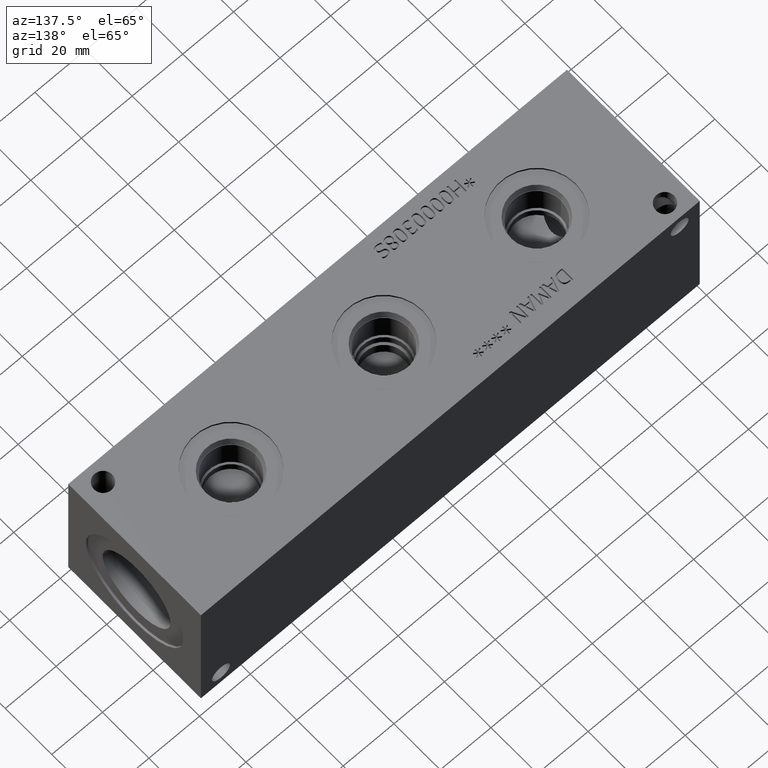
[diagram: clean part render]
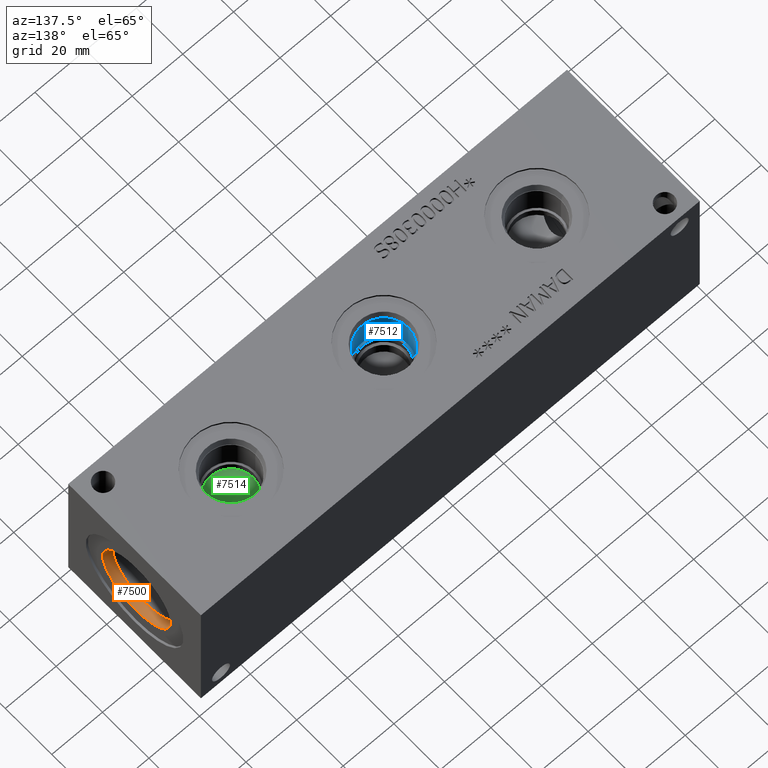
[diagram: same view with three faces highlighted in distinct colors, each labeled with its STEP entity id]
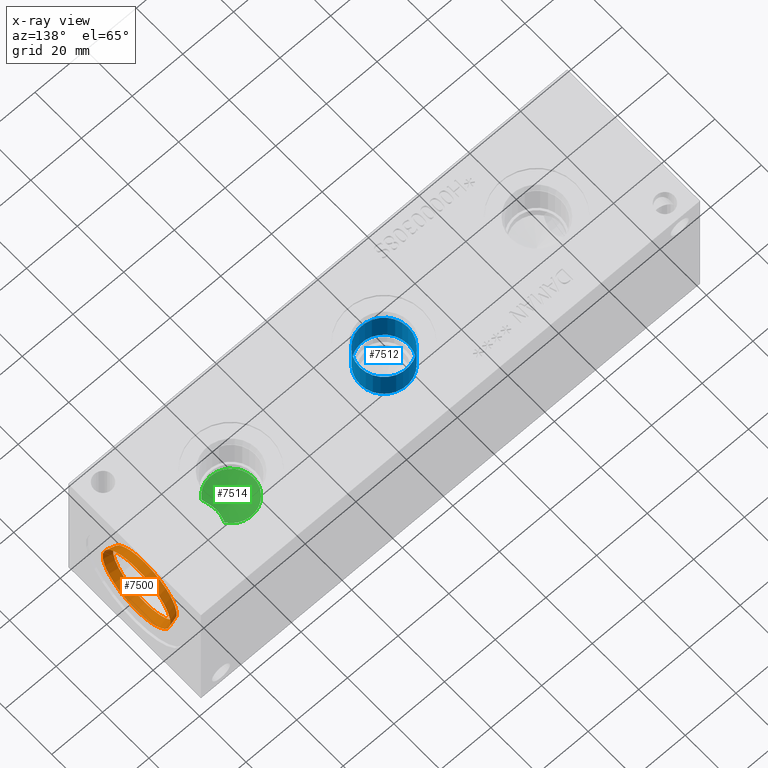
[diagram: x-ray of the same camera — body ghosted, the three highlighted faces saturated]
A machine part, auxiliary view with three faces highlighted in distinct colors.
The next image is the same camera in x-ray (body ghosted, the three faces saturated) — at least one of them is partly hidden behind the body in this view.
Their STEP definitions:

[orange] entity #7500 — the highlighted conical surface has half-angle 15 deg.
#20=CONICAL_SURFACE('',#7840,14.15415,0.26179938953232);
#126=CIRCLE('',#7838,14.5923);
#127=CIRCLE('',#7839,14.5923);
#128=CIRCLE('',#7841,13.716);
#129=CIRCLE('',#7842,13.716);
#782=FACE_OUTER_BOUND('',#1203,.T.);
#1203=EDGE_LOOP('',(#6527,#6528,#6529,#6530,#6531,#6532));
#1905=LINE('',#12963,#2589);
#2589=VECTOR('',#9153,14.15415);
#3526=VERTEX_POINT('',#12957);
#3527=VERTEX_POINT('',#12958);
#3528=VERTEX_POINT('',#12962);
#3529=VERTEX_POINT('',#12964);
#4547=EDGE_CURVE('',#3526,#3527,#126,.T.);
#4548=EDGE_CURVE('',#3527,#3526,#127,.T.);
#4549=EDGE_CURVE('',#3527,#3528,#1905,.T.);
#4550=EDGE_CURVE('',#3528,#3529,#128,.T.);
#4551=EDGE_CURVE('',#3529,#3528,#129,.T.);
#6527=ORIENTED_EDGE('',*,*,#4547,.F.);
#6528=ORIENTED_EDGE('',*,*,#4548,.F.);
#6529=ORIENTED_EDGE('',*,*,#4549,.T.);
#6530=ORIENTED_EDGE('',*,*,#4550,.T.);
#6531=ORIENTED_EDGE('',*,*,#4551,.T.);
#6532=ORIENTED_EDGE('',*,*,#4549,.F.);
#7500=ADVANCED_FACE('',(#782),#20,.F.);
#7838=AXIS2_PLACEMENT_3D('',#12959,#9147,#9148);
#7839=AXIS2_PLACEMENT_3D('',#12960,#9149,#9150);
#7840=AXIS2_PLACEMENT_3D('',#12961,#9151,#9152);
#7841=AXIS2_PLACEMENT_3D('',#12965,#9154,#9155);
#7842=AXIS2_PLACEMENT_3D('',#12966,#9156,#9157);
#9147=DIRECTION('center_axis',(-1.,0.,0.));
#9148=DIRECTION('ref_axis',(0.,0.,1.));
#9149=DIRECTION('center_axis',(-1.,0.,0.));
#9150=DIRECTION('ref_axis',(0.,0.,1.));
#9151=DIRECTION('center_axis',(1.,0.,0.));
#9152=DIRECTION('ref_axis',(0.,0.,-1.));
#9153=DIRECTION('',(-0.965925825840491,-3.16961917193375E-17,-0.258819046776635));
#9154=DIRECTION('center_axis',(-1.,0.,0.));
#9155=DIRECTION('ref_axis',(0.,0.,1.));
#9156=DIRECTION('center_axis',(-1.,0.,0.));
#9157=DIRECTION('ref_axis',(0.,0.,1.));
#12957=CARTESIAN_POINT('',(196.0626,28.575,13.9827));
#12958=CARTESIAN_POINT('',(196.0626,28.575,43.1673));
#12959=CARTESIAN_POINT('Origin',(196.0626,28.575,28.575));
#12960=CARTESIAN_POINT('Origin',(196.0626,28.575,28.575));
#12961=CARTESIAN_POINT('Origin',(194.42740195,28.575,28.575));
#12962=CARTESIAN_POINT('',(192.7922039,28.575,42.291));
#12963=CARTESIAN_POINT('',(194.42740195,28.575,42.72915));
#12964=CARTESIAN_POINT('',(192.7922039,28.575,14.859));
#12965=CARTESIAN_POINT('Origin',(192.7922039,28.575,28.575));
#12966=CARTESIAN_POINT('Origin',(192.7922039,28.575,28.575));

[blue] entity #7512 — the highlighted cylindrical surface (bore or boss wall) has radius 9.525 mm, axis along (0, 0, 1).
#61=CYLINDRICAL_SURFACE('',#7873,9.525);
#146=CIRCLE('',#7870,9.525);
#147=CIRCLE('',#7871,9.525);
#149=CIRCLE('',#7874,9.525);
#794=FACE_OUTER_BOUND('',#1217,.T.);
#1217=EDGE_LOOP('',(#6589,#6590,#6591,#6592,#6593));
#1915=LINE('',#13029,#2599);
#2599=VECTOR('',#9231,9.525);
#3547=VERTEX_POINT('',#13020);
#3548=VERTEX_POINT('',#13021);
#3550=VERTEX_POINT('',#13027);
#4577=EDGE_CURVE('',#3547,#3548,#146,.T.);
#4578=EDGE_CURVE('',#3548,#3547,#147,.T.);
#4580=EDGE_CURVE('',#3550,#3550,#149,.T.);
#4581=EDGE_CURVE('',#3550,#3548,#1915,.T.);
#6589=ORIENTED_EDGE('',*,*,#4580,.F.);
#6590=ORIENTED_EDGE('',*,*,#4581,.T.);
#6591=ORIENTED_EDGE('',*,*,#4577,.F.);
#6592=ORIENTED_EDGE('',*,*,#4578,.F.);
#6593=ORIENTED_EDGE('',*,*,#4581,.F.);
#7512=ADVANCED_FACE('',(#794),#61,.F.);
#7870=AXIS2_PLACEMENT_3D('',#13022,#9221,#9222);
#7871=AXIS2_PLACEMENT_3D('',#13023,#9223,#9224);
#7873=AXIS2_PLACEMENT_3D('',#13026,#9227,#9228);
#7874=AXIS2_PLACEMENT_3D('',#13028,#9229,#9230);
#9221=DIRECTION('center_axis',(0.,0.,1.));
#9222=DIRECTION('ref_axis',(1.,0.,0.));
#9223=DIRECTION('center_axis',(0.,0.,1.));
#9224=DIRECTION('ref_axis',(1.,0.,0.));
#9227=DIRECTION('center_axis',(0.,0.,1.));
#9228=DIRECTION('ref_axis',(1.,0.,0.));
#9229=DIRECTION('center_axis',(0.,0.,-1.));
#9230=DIRECTION('ref_axis',(1.,0.,0.));
#9231=DIRECTION('',(0.,0.,-1.));
#13020=CARTESIAN_POINT('',(107.95,28.575,42.0878));
#13021=CARTESIAN_POINT('',(88.9,28.575,42.0878));
#13022=CARTESIAN_POINT('Origin',(98.425,28.575,42.0878));
#13023=CARTESIAN_POINT('Origin',(98.425,28.575,42.0878));
#13026=CARTESIAN_POINT('Origin',(98.425,28.575,49.6189));
#13027=CARTESIAN_POINT('',(88.9,28.575,53.7464));
#13028=CARTESIAN_POINT('Origin',(98.425,28.575,53.7464));
#13029=CARTESIAN_POINT('',(88.9,28.575,49.6189));

[green] entity #7514 — the highlighted conical surface has half-angle 66 deg.
#26=CONICAL_SURFACE('',#7876,4.37515,1.15191730631626);
#113=CIRCLE('',#7819,8.7503);
#114=CIRCLE('',#7820,8.7503);
#796=FACE_OUTER_BOUND('',#1219,.T.);
#1219=EDGE_LOOP('',(#6599,#6600,#6601,#6602,#6603));
#1917=LINE('',#13034,#2601);
#2601=VECTOR('',#9237,4.37515);
#2875=B_SPLINE_CURVE_WITH_KNOTS('',3,(#12898,#12899,#12900,#12901,#12902,
#12903,#12904,#12905,#12906,#12907,#12908,#12909,#12910,#12911),
 .UNSPECIFIED.,.F.,.F.,(4,2,2,2,2,2,4),(2.13394439789774,2.39047020700237,
2.56121807893112,2.73196595085986,2.9027138227886,3.07346169471734,3.32998750382198),
 .UNSPECIFIED.);
#3510=VERTEX_POINT('',#12892);
#3511=VERTEX_POINT('',#12897);
#3514=VERTEX_POINT('',#12921);
#3551=VERTEX_POINT('',#13033);
#4525=EDGE_CURVE('',#3511,#3510,#2875,.T.);
#4530=EDGE_CURVE('',#3510,#3514,#113,.T.);
#4531=EDGE_CURVE('',#3514,#3511,#114,.T.);
#4583=EDGE_CURVE('',#3514,#3551,#1917,.T.);
#6599=ORIENTED_EDGE('',*,*,#4525,.T.);
#6600=ORIENTED_EDGE('',*,*,#4530,.T.);
#6601=ORIENTED_EDGE('',*,*,#4583,.T.);
#6602=ORIENTED_EDGE('',*,*,#4583,.F.);
#6603=ORIENTED_EDGE('',*,*,#4531,.T.);
#7514=ADVANCED_FACE('',(#796),#26,.F.);
#7819=AXIS2_PLACEMENT_3D('',#12923,#9105,#9106);
#7820=AXIS2_PLACEMENT_3D('',#12924,#9107,#9108);
#7876=AXIS2_PLACEMENT_3D('',#13032,#9235,#9236);
#9105=DIRECTION('center_axis',(0.,0.,1.));
#9106=DIRECTION('ref_axis',(1.,0.,0.));
#9107=DIRECTION('center_axis',(0.,0.,1.));
#9108=DIRECTION('ref_axis',(1.,0.,0.));
#9235=DIRECTION('center_axis',(0.,0.,1.));
#9236=DIRECTION('ref_axis',(1.,0.,0.));
#9237=DIRECTION('',(0.913545457642601,1.11877052057761E-16,-0.4067366430758));
#12892=CARTESIAN_POINT('',(165.943881897723,33.5565472828839,38.87169));
#12897=CARTESIAN_POINT('',(165.943881897723,23.5934527171161,38.87169));
#12898=CARTESIAN_POINT('Ctrl Pts',(165.943881897723,23.5934527171161,38.87169));
#12899=CARTESIAN_POINT('Ctrl Pts',(165.632515483229,24.2514633256343,38.5909336252092));
#12900=CARTESIAN_POINT('Ctrl Pts',(165.345994820785,24.9088671272217,38.3278680423649));
#12901=CARTESIAN_POINT('Ctrl Pts',(164.94182037904,26.0444317686192,37.9500312577053));
#12902=CARTESIAN_POINT('Ctrl Pts',(164.800087487218,26.5078953287233,37.8154029417096));
#12903=CARTESIAN_POINT('Ctrl Pts',(164.588263306293,27.4885923612836,37.6122949617681));
#12904=CARTESIAN_POINT('Ctrl Pts',(164.518121419579,28.0058404269042,37.5439385512841));
#12905=CARTESIAN_POINT('Ctrl Pts',(164.518121419579,29.1441595730958,37.5439385512841));
#12906=CARTESIAN_POINT('Ctrl Pts',(164.588263306293,29.6614076387164,37.6122949617682));
#12907=CARTESIAN_POINT('Ctrl Pts',(164.800087487218,30.6421046712766,37.8154029417096));
#12908=CARTESIAN_POINT('Ctrl Pts',(164.94182037904,31.1055682313808,37.9500312577053));
#12909=CARTESIAN_POINT('Ctrl Pts',(165.345994820785,32.2411328727783,38.3278680423649));
#12910=CARTESIAN_POINT('Ctrl Pts',(165.632515483229,32.8985366743658,38.5909336252092));
#12911=CARTESIAN_POINT('Ctrl Pts',(165.943881897723,33.5565472828839,38.87169));
#12921=CARTESIAN_POINT('',(149.9997,28.575,38.87169));
#12923=CARTESIAN_POINT('Origin',(158.75,28.575,38.87169));
#12924=CARTESIAN_POINT('Origin',(158.75,28.575,38.87169));
#13032=CARTESIAN_POINT('Origin',(158.75,28.575,36.9237477174724));
#13033=CARTESIAN_POINT('',(158.75,28.575,34.9758054349447));
#13034=CARTESIAN_POINT('',(154.37485,28.575,36.9237477174724));